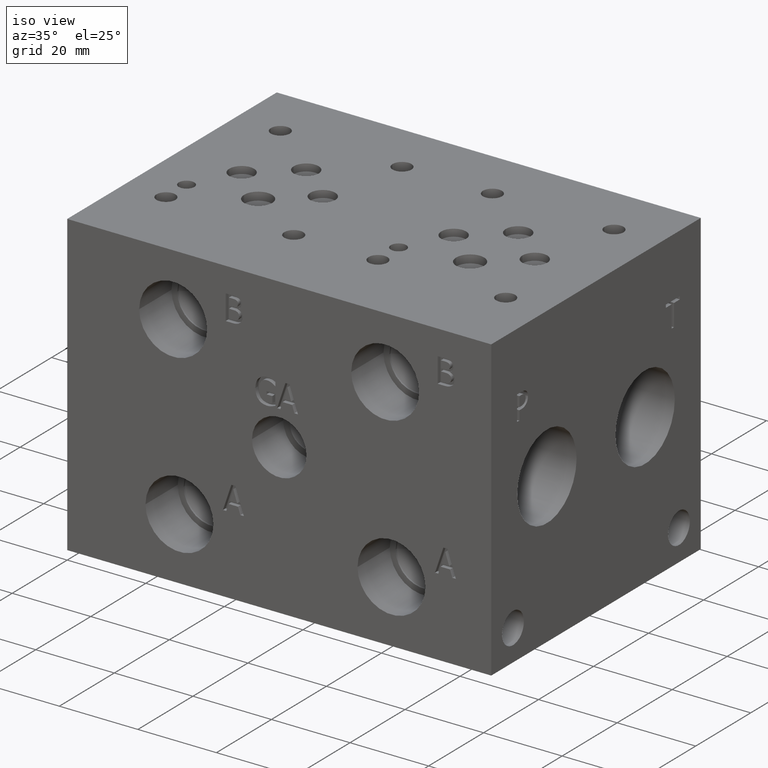
[diagram: clean part render]
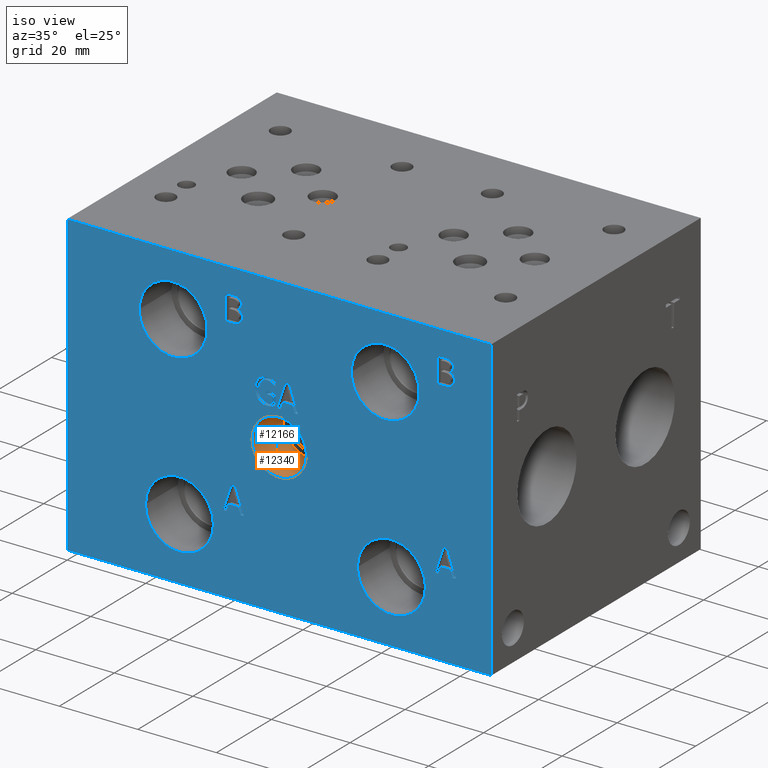
[diagram: same view with the hole feature highlighted: cylindrical wall and planar end face, labeled with their STEP entity ids]
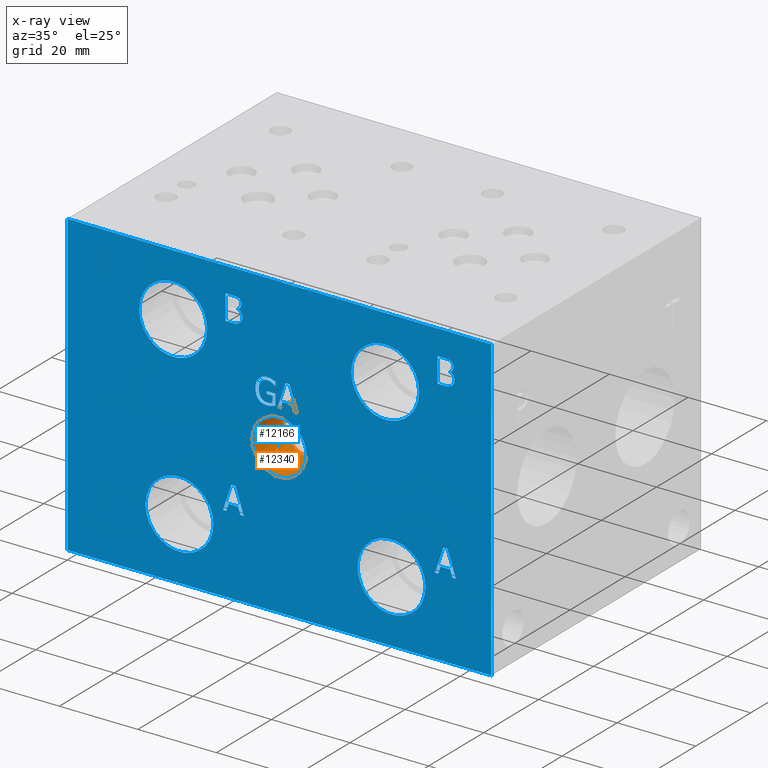
[diagram: x-ray of the same camera — body ghosted, the hole faces saturated]
A machine part, iso view. The highlighted faces form one hole feature of diameter 13.8684 mm: the cylindrical wall (entity #12340, orange) and its adjacent planar end face (entity #12166, blue) — they share a circular edge in the B-rep.
The next image is the same camera in x-ray (body ghosted, the hole faces saturated) — the bore reads through the body.
Wall:
#93=CYLINDRICAL_SURFACE('',#12984,6.9342);
#140=CIRCLE('',#12690,6.9342);
#141=CIRCLE('',#12691,6.9342);
#286=CIRCLE('',#12981,6.9342);
#287=CIRCLE('',#12982,6.9342);
#1382=FACE_OUTER_BOUND('',#2091,.T.);
#2091=EDGE_LOOP('',(#10833,#10834,#10835,#10836,#10837,#10838));
#3261=LINE('',#21233,#4389);
#4389=VECTOR('',#15347,6.9342);
#5588=VERTEX_POINT('',#19947);
#5589=VERTEX_POINT('',#19948);
#5897=VERTEX_POINT('',#21226);
#5898=VERTEX_POINT('',#21227);
#7151=EDGE_CURVE('',#5588,#5589,#140,.T.);
#7152=EDGE_CURVE('',#5589,#5588,#141,.T.);
#7584=EDGE_CURVE('',#5897,#5898,#286,.T.);
#7585=EDGE_CURVE('',#5898,#5897,#287,.T.);
#7587=EDGE_CURVE('',#5589,#5898,#3261,.T.);
#10833=ORIENTED_EDGE('',*,*,#7151,.F.);
#10834=ORIENTED_EDGE('',*,*,#7152,.F.);
#10835=ORIENTED_EDGE('',*,*,#7587,.T.);
#10836=ORIENTED_EDGE('',*,*,#7584,.F.);
#10837=ORIENTED_EDGE('',*,*,#7585,.F.);
#10838=ORIENTED_EDGE('',*,*,#7587,.F.);
#12340=ADVANCED_FACE('',(#1382),#93,.F.);
#12690=AXIS2_PLACEMENT_3D('',#19949,#14526,#14527);
#12691=AXIS2_PLACEMENT_3D('',#19950,#14528,#14529);
#12981=AXIS2_PLACEMENT_3D('',#21228,#15339,#15340);
#12982=AXIS2_PLACEMENT_3D('',#21229,#15341,#15342);
#12984=AXIS2_PLACEMENT_3D('',#21232,#15345,#15346);
#14526=DIRECTION('center_axis',(0.,1.,0.));
#14527=DIRECTION('ref_axis',(1.,0.,0.));
#14528=DIRECTION('center_axis',(0.,1.,0.));
#14529=DIRECTION('ref_axis',(1.,0.,0.));
#15339=DIRECTION('center_axis',(0.,-1.,0.));
#15340=DIRECTION('ref_axis',(1.,0.,0.));
#15341=DIRECTION('center_axis',(0.,-1.,0.));
#15342=DIRECTION('ref_axis',(1.,0.,0.));
#15345=DIRECTION('center_axis',(0.,-1.,0.));
#15346=DIRECTION('ref_axis',(1.,0.,0.));
#15347=DIRECTION('',(0.,1.,0.));
#19947=CARTESIAN_POINT('',(60.9092,0.,38.1));
#19948=CARTESIAN_POINT('',(47.0408,0.,38.1));
#19949=CARTESIAN_POINT('Origin',(53.975,0.,38.1));
#19950=CARTESIAN_POINT('Origin',(53.975,0.,38.1));
#21226=CARTESIAN_POINT('',(60.9092,11.4046,38.1));
#21227=CARTESIAN_POINT('',(47.0408,11.4046,38.1));
#21228=CARTESIAN_POINT('Origin',(53.975,11.4046,38.1));
#21229=CARTESIAN_POINT('Origin',(53.975,11.4046,38.1));
#21232=CARTESIAN_POINT('Origin',(53.975,5.7023,38.1));
#21233=CARTESIAN_POINT('',(47.0408,5.7023,38.1));
End face:
#132=CIRCLE('',#12682,8.6487);
#133=CIRCLE('',#12683,8.6487);
#134=CIRCLE('',#12684,8.6487);
#135=CIRCLE('',#12685,8.6487);
#136=CIRCLE('',#12686,8.6487);
#137=CIRCLE('',#12687,8.6487);
#138=CIRCLE('',#12688,8.6487);
#139=CIRCLE('',#12689,8.6487);
#140=CIRCLE('',#12690,6.9342);
#141=CIRCLE('',#12691,6.9342);
#380=FACE_BOUND('',#1886,.T.);
#381=FACE_BOUND('',#1887,.T.);
#382=FACE_BOUND('',#1888,.T.);
#383=FACE_BOUND('',#1889,.T.);
#384=FACE_BOUND('',#1890,.T.);
#385=FACE_BOUND('',#1891,.T.);
#386=FACE_BOUND('',#1892,.T.);
#387=FACE_BOUND('',#1893,.T.);
#388=FACE_BOUND('',#1894,.T.);
#389=FACE_BOUND('',#1895,.T.);
#390=FACE_BOUND('',#1896,.T.);
#702=PLANE('',#12681);
#1208=FACE_OUTER_BOUND('',#1885,.T.);
#1885=EDGE_LOOP('',(#9935,#9936,#9937,#9938));
#1886=EDGE_LOOP('',(#9939,#9940,#9941,#9942,#9943,#9944,#9945,#9946));
#1887=EDGE_LOOP('',(#9947,#9948));
#1888=EDGE_LOOP('',(#9949,#9950));
#1889=EDGE_LOOP('',(#9951,#9952));
#1890=EDGE_LOOP('',(#9953,#9954));
#1891=EDGE_LOOP('',(#9955,#9956));
#1892=EDGE_LOOP('',(#9957,#9958,#9959,#9960,#9961,#9962,#9963,#9964,#9965,
#9966));
#1893=EDGE_LOOP('',(#9967,#9968,#9969,#9970,#9971,#9972,#9973,#9974,#9975,
#9976));
#1894=EDGE_LOOP('',(#9977,#9978,#9979,#9980,#9981,#9982,#9983,#9984));
#1895=EDGE_LOOP('',(#9985,#9986,#9987,#9988,#9989,#9990,#9991,#9992,#9993,
#9994,#9995,#9996,#9997,#9998,#9999,#10000,#10001,#10002,#10003,#10004,
#10005));
#1896=EDGE_LOOP('',(#10006,#10007,#10008,#10009,#10010,#10011,#10012,#10013));
#2199=LINE('',#15774,#3327);
#2257=LINE('',#16046,#3385);
#2961=LINE('',#19557,#4089);
#2965=LINE('',#19565,#4093);
#2968=LINE('',#19571,#4096);
#2971=LINE('',#19577,#4099);
#2974=LINE('',#19583,#4102);
#2977=LINE('',#19589,#4105);
#2980=LINE('',#19595,#4108);
#2983=LINE('',#19600,#4111);
#2988=LINE('',#19646,#4116);
#2991=LINE('',#19652,#4119);
#2994=LINE('',#19658,#4122);
#2997=LINE('',#19664,#4125);
#3000=LINE('',#19670,#4128);
#3009=LINE('',#19790,#4137);
#3012=LINE('',#19796,#4140);
#3020=LINE('',#19913,#4148);
#3021=LINE('',#19914,#4149);
#3022=LINE('',#19917,#4150);
#3023=LINE('',#19919,#4151);
#3024=LINE('',#19921,#4152);
#3025=LINE('',#19923,#4153);
#3026=LINE('',#19925,#4154);
#3027=LINE('',#19927,#4155);
#3028=LINE('',#19929,#4156);
#3029=LINE('',#19930,#4157);
#3030=LINE('',#19968,#4158);
#3031=LINE('',#19970,#4159);
#3032=LINE('',#19972,#4160);
#3033=LINE('',#19988,#4161);
#3034=LINE('',#20006,#4162);
#3035=LINE('',#20008,#4163);
#3036=LINE('',#20010,#4164);
#3037=LINE('',#20026,#4165);
#3038=LINE('',#20029,#4166);
#3039=LINE('',#20031,#4167);
#3040=LINE('',#20033,#4168);
#3041=LINE('',#20035,#4169);
#3042=LINE('',#20037,#4170);
#3043=LINE('',#20039,#4171);
#3044=LINE('',#20041,#4172);
#3045=LINE('',#20042,#4173);
#3327=VECTOR('',#13135,10.);
#3385=VECTOR('',#13247,10.);
#4089=VECTOR('',#14407,10.);
#4093=VECTOR('',#14413,10.);
#4096=VECTOR('',#14418,10.);
#4099=VECTOR('',#14423,10.);
#4102=VECTOR('',#14428,10.);
#4105=VECTOR('',#14433,10.);
#4108=VECTOR('',#14438,10.);
#4111=VECTOR('',#14443,10.);
#4116=VECTOR('',#14452,10.);
#4119=VECTOR('',#14457,10.);
#4122=VECTOR('',#14462,10.);
#4125=VECTOR('',#14467,10.);
#4128=VECTOR('',#14472,10.);
#4137=VECTOR('',#14483,10.);
#4140=VECTOR('',#14488,10.);
#4148=VECTOR('',#14500,10.);
#4149=VECTOR('',#14501,10.);
#4150=VECTOR('',#14502,10.);
#4151=VECTOR('',#14503,10.);
#4152=VECTOR('',#14504,10.);
#4153=VECTOR('',#14505,10.);
#4154=VECTOR('',#14506,10.);
#4155=VECTOR('',#14507,10.);
#4156=VECTOR('',#14508,10.);
#4157=VECTOR('',#14509,10.);
#4158=VECTOR('',#14530,10.);
#4159=VECTOR('',#14531,10.);
#4160=VECTOR('',#14532,10.);
#4161=VECTOR('',#14533,10.);
#4162=VECTOR('',#14534,10.);
#4163=VECTOR('',#14535,10.);
#4164=VECTOR('',#14536,10.);
#4165=VECTOR('',#14537,10.);
#4166=VECTOR('',#14538,10.);
#4167=VECTOR('',#14539,10.);
#4168=VECTOR('',#14540,10.);
#4169=VECTOR('',#14541,10.);
#4170=VECTOR('',#14542,10.);
#4171=VECTOR('',#14543,10.);
#4172=VECTOR('',#14544,10.);
#4173=VECTOR('',#14545,10.);
#4694=B_SPLINE_CURVE_WITH_KNOTS('',2,(#19613,#19614,#19615,#19616),
 .UNSPECIFIED.,.F.,.F.,(3,1,3),(0.,1.,2.),.UNSPECIFIED.);
#4696=B_SPLINE_CURVE_WITH_KNOTS('',2,(#19634,#19635,#19636,#19637),
 .UNSPECIFIED.,.F.,.F.,(3,1,3),(0.,1.,2.),.UNSPECIFIED.);
#4698=B_SPLINE_CURVE_WITH_KNOTS('',2,(#19683,#19684,#19685,#19686),
 .UNSPECIFIED.,.F.,.F.,(3,1,3),(0.,1.,2.),.UNSPECIFIED.);
#4700=B_SPLINE_CURVE_WITH_KNOTS('',2,(#19702,#19703,#19704,#19705),
 .UNSPECIFIED.,.F.,.F.,(3,1,3),(0.,1.,2.),.UNSPECIFIED.);
#4702=B_SPLINE_CURVE_WITH_KNOTS('',2,(#19721,#19722,#19723,#19724),
 .UNSPECIFIED.,.F.,.F.,(3,1,3),(0.,1.,2.),.UNSPECIFIED.);
#4704=B_SPLINE_CURVE_WITH_KNOTS('',2,(#19740,#19741,#19742,#19743),
 .UNSPECIFIED.,.F.,.F.,(3,1,3),(0.,1.,2.),.UNSPECIFIED.);
#4706=B_SPLINE_CURVE_WITH_KNOTS('',2,(#19759,#19760,#19761,#19762),
 .UNSPECIFIED.,.F.,.F.,(3,1,3),(0.,1.,2.),.UNSPECIFIED.);
#4708=B_SPLINE_CURVE_WITH_KNOTS('',2,(#19778,#19779,#19780,#19781),
 .UNSPECIFIED.,.F.,.F.,(3,1,3),(0.,1.,2.),.UNSPECIFIED.);
#4710=B_SPLINE_CURVE_WITH_KNOTS('',2,(#19809,#19810,#19811,#19812),
 .UNSPECIFIED.,.F.,.F.,(3,1,3),(0.,1.,2.),.UNSPECIFIED.);
#4712=B_SPLINE_CURVE_WITH_KNOTS('',2,(#19828,#19829,#19830,#19831),
 .UNSPECIFIED.,.F.,.F.,(3,1,3),(0.,1.,2.),.UNSPECIFIED.);
#4714=B_SPLINE_CURVE_WITH_KNOTS('',2,(#19847,#19848,#19849,#19850),
 .UNSPECIFIED.,.F.,.F.,(3,1,3),(0.,1.,2.),.UNSPECIFIED.);
#4716=B_SPLINE_CURVE_WITH_KNOTS('',2,(#19866,#19867,#19868,#19869),
 .UNSPECIFIED.,.F.,.F.,(3,1,3),(0.,1.,2.),.UNSPECIFIED.);
#4718=B_SPLINE_CURVE_WITH_KNOTS('',2,(#19885,#19886,#19887,#19888),
 .UNSPECIFIED.,.F.,.F.,(3,1,3),(0.,1.,2.),.UNSPECIFIED.);
#4720=B_SPLINE_CURVE_WITH_KNOTS('',2,(#19903,#19904,#19905,#19906),
 .UNSPECIFIED.,.F.,.F.,(3,1,3),(0.,1.,2.),.UNSPECIFIED.);
#4722=B_SPLINE_CURVE_WITH_KNOTS('',2,(#19953,#19954,#19955,#19956),
 .UNSPECIFIED.,.F.,.F.,(3,1,3),(0.,1.,2.),.UNSPECIFIED.);
#4723=B_SPLINE_CURVE_WITH_KNOTS('',2,(#19958,#19959,#19960,#19961),
 .UNSPECIFIED.,.F.,.F.,(3,1,3),(0.,1.,2.),.UNSPECIFIED.);
#4724=B_SPLINE_CURVE_WITH_KNOTS('',2,(#19963,#19964,#19965,#19966),
 .UNSPECIFIED.,.F.,.F.,(3,1,3),(0.,1.,2.),.UNSPECIFIED.);
#4725=B_SPLINE_CURVE_WITH_KNOTS('',2,(#19974,#19975,#19976,#19977),
 .UNSPECIFIED.,.F.,.F.,(3,1,3),(0.,1.,2.),.UNSPECIFIED.);
#4726=B_SPLINE_CURVE_WITH_KNOTS('',2,(#19979,#19980,#19981,#19982),
 .UNSPECIFIED.,.F.,.F.,(3,1,3),(0.,1.,2.),.UNSPECIFIED.);
#4727=B_SPLINE_CURVE_WITH_KNOTS('',2,(#19984,#19985,#19986,#19987),
 .UNSPECIFIED.,.F.,.F.,(3,1,3),(0.,1.,2.),.UNSPECIFIED.);
#4728=B_SPLINE_CURVE_WITH_KNOTS('',2,(#19991,#19992,#19993,#19994),
 .UNSPECIFIED.,.F.,.F.,(3,1,3),(0.,1.,2.),.UNSPECIFIED.);
#4729=B_SPLINE_CURVE_WITH_KNOTS('',2,(#19996,#19997,#19998,#19999),
 .UNSPECIFIED.,.F.,.F.,(3,1,3),(0.,1.,2.),.UNSPECIFIED.);
#4730=B_SPLINE_CURVE_WITH_KNOTS('',2,(#20001,#20002,#20003,#20004),
 .UNSPECIFIED.,.F.,.F.,(3,1,3),(0.,1.,2.),.UNSPECIFIED.);
#4731=B_SPLINE_CURVE_WITH_KNOTS('',2,(#20012,#20013,#20014,#20015),
 .UNSPECIFIED.,.F.,.F.,(3,1,3),(0.,1.,2.),.UNSPECIFIED.);
#4732=B_SPLINE_CURVE_WITH_KNOTS('',2,(#20017,#20018,#20019,#20020),
 .UNSPECIFIED.,.F.,.F.,(3,1,3),(0.,1.,2.),.UNSPECIFIED.);
#4733=B_SPLINE_CURVE_WITH_KNOTS('',2,(#20022,#20023,#20024,#20025),
 .UNSPECIFIED.,.F.,.F.,(3,1,3),(0.,1.,2.),.UNSPECIFIED.);
#4810=VERTEX_POINT('',#15767);
#4813=VERTEX_POINT('',#15772);
#4871=VERTEX_POINT('',#16043);
#4872=VERTEX_POINT('',#16045);
#5514=VERTEX_POINT('',#19555);
#5515=VERTEX_POINT('',#19556);
#5518=VERTEX_POINT('',#19564);
#5520=VERTEX_POINT('',#19570);
#5522=VERTEX_POINT('',#19576);
#5524=VERTEX_POINT('',#19582);
#5526=VERTEX_POINT('',#19588);
#5528=VERTEX_POINT('',#19594);
#5530=VERTEX_POINT('',#19611);
#5531=VERTEX_POINT('',#19612);
#5534=VERTEX_POINT('',#19633);
#5536=VERTEX_POINT('',#19645);
#5538=VERTEX_POINT('',#19651);
#5540=VERTEX_POINT('',#19657);
#5542=VERTEX_POINT('',#19663);
#5544=VERTEX_POINT('',#19669);
#5546=VERTEX_POINT('',#19682);
#5548=VERTEX_POINT('',#19701);
#5550=VERTEX_POINT('',#19720);
#5552=VERTEX_POINT('',#19739);
#5554=VERTEX_POINT('',#19758);
#5556=VERTEX_POINT('',#19777);
#5558=VERTEX_POINT('',#19789);
#5560=VERTEX_POINT('',#19795);
#5562=VERTEX_POINT('',#19808);
#5564=VERTEX_POINT('',#19827);
#5566=VERTEX_POINT('',#19846);
#5568=VERTEX_POINT('',#19865);
#5570=VERTEX_POINT('',#19884);
#5572=VERTEX_POINT('',#19915);
#5573=VERTEX_POINT('',#19916);
#5574=VERTEX_POINT('',#19918);
#5575=VERTEX_POINT('',#19920);
#5576=VERTEX_POINT('',#19922);
#5577=VERTEX_POINT('',#19924);
#5578=VERTEX_POINT('',#19926);
#5579=VERTEX_POINT('',#19928);
#5580=VERTEX_POINT('',#19931);
#5581=VERTEX_POINT('',#19932);
#5582=VERTEX_POINT('',#19935);
#5583=VERTEX_POINT('',#19936);
#5584=VERTEX_POINT('',#19939);
#5585=VERTEX_POINT('',#19940);
#5586=VERTEX_POINT('',#19943);
#5587=VERTEX_POINT('',#19944);
#5588=VERTEX_POINT('',#19947);
#5589=VERTEX_POINT('',#19948);
#5590=VERTEX_POINT('',#19951);
#5591=VERTEX_POINT('',#19952);
#5592=VERTEX_POINT('',#19957);
#5593=VERTEX_POINT('',#19962);
#5594=VERTEX_POINT('',#19967);
#5595=VERTEX_POINT('',#19969);
#5596=VERTEX_POINT('',#19971);
#5597=VERTEX_POINT('',#19973);
#5598=VERTEX_POINT('',#19978);
#5599=VERTEX_POINT('',#19983);
#5600=VERTEX_POINT('',#19989);
#5601=VERTEX_POINT('',#19990);
#5602=VERTEX_POINT('',#19995);
#5603=VERTEX_POINT('',#20000);
#5604=VERTEX_POINT('',#20005);
#5605=VERTEX_POINT('',#20007);
#5606=VERTEX_POINT('',#20009);
#5607=VERTEX_POINT('',#20011);
#5608=VERTEX_POINT('',#20016);
#5609=VERTEX_POINT('',#20021);
#5610=VERTEX_POINT('',#20027);
#5611=VERTEX_POINT('',#20028);
#5612=VERTEX_POINT('',#20030);
#5613=VERTEX_POINT('',#20032);
#5614=VERTEX_POINT('',#20034);
#5615=VERTEX_POINT('',#20036);
#5616=VERTEX_POINT('',#20038);
#5617=VERTEX_POINT('',#20040);
#6008=EDGE_CURVE('',#4810,#4813,#2199,.T.);
#6090=EDGE_CURVE('',#4871,#4872,#2257,.T.);
#7046=EDGE_CURVE('',#5514,#5515,#2961,.T.);
#7050=EDGE_CURVE('',#5518,#5514,#2965,.T.);
#7053=EDGE_CURVE('',#5520,#5518,#2968,.T.);
#7056=EDGE_CURVE('',#5522,#5520,#2971,.T.);
#7059=EDGE_CURVE('',#5524,#5522,#2974,.T.);
#7062=EDGE_CURVE('',#5526,#5524,#2977,.T.);
#7065=EDGE_CURVE('',#5528,#5526,#2980,.T.);
#7068=EDGE_CURVE('',#5515,#5528,#2983,.T.);
#7070=EDGE_CURVE('',#5530,#5531,#4694,.T.);
#7074=EDGE_CURVE('',#5534,#5530,#4696,.T.);
#7077=EDGE_CURVE('',#5536,#5534,#2988,.T.);
#7080=EDGE_CURVE('',#5538,#5536,#2991,.T.);
#7083=EDGE_CURVE('',#5540,#5538,#2994,.T.);
#7086=EDGE_CURVE('',#5542,#5540,#2997,.T.);
#7089=EDGE_CURVE('',#5544,#5542,#3000,.T.);
#7092=EDGE_CURVE('',#5546,#5544,#4698,.T.);
#7095=EDGE_CURVE('',#5548,#5546,#4700,.T.);
#7098=EDGE_CURVE('',#5550,#5548,#4702,.T.);
#7101=EDGE_CURVE('',#5552,#5550,#4704,.T.);
#7104=EDGE_CURVE('',#5554,#5552,#4706,.T.);
#7107=EDGE_CURVE('',#5556,#5554,#4708,.T.);
#7110=EDGE_CURVE('',#5558,#5556,#3009,.T.);
#7113=EDGE_CURVE('',#5560,#5558,#3012,.T.);
#7116=EDGE_CURVE('',#5562,#5560,#4710,.T.);
#7119=EDGE_CURVE('',#5564,#5562,#4712,.T.);
#7122=EDGE_CURVE('',#5566,#5564,#4714,.T.);
#7125=EDGE_CURVE('',#5568,#5566,#4716,.T.);
#7128=EDGE_CURVE('',#5570,#5568,#4718,.T.);
#7131=EDGE_CURVE('',#5531,#5570,#4720,.T.);
#7133=EDGE_CURVE('',#4871,#4810,#3020,.T.);
#7134=EDGE_CURVE('',#4872,#4813,#3021,.T.);
#7135=EDGE_CURVE('',#5572,#5573,#3022,.T.);
#7136=EDGE_CURVE('',#5573,#5574,#3023,.T.);
#7137=EDGE_CURVE('',#5574,#5575,#3024,.T.);
#7138=EDGE_CURVE('',#5575,#5576,#3025,.T.);
#7139=EDGE_CURVE('',#5576,#5577,#3026,.T.);
#7140=EDGE_CURVE('',#5577,#5578,#3027,.T.);
#7141=EDGE_CURVE('',#5578,#5579,#3028,.T.);
#7142=EDGE_CURVE('',#5579,#5572,#3029,.T.);
#7143=EDGE_CURVE('',#5580,#5581,#132,.T.);
#7144=EDGE_CURVE('',#5581,#5580,#133,.T.);
#7145=EDGE_CURVE('',#5582,#5583,#134,.T.);
#7146=EDGE_CURVE('',#5583,#5582,#135,.T.);
#7147=EDGE_CURVE('',#5584,#5585,#136,.T.);
#7148=EDGE_CURVE('',#5585,#5584,#137,.T.);
#7149=EDGE_CURVE('',#5586,#5587,#138,.T.);
#7150=EDGE_CURVE('',#5587,#5586,#139,.T.);
#7151=EDGE_CURVE('',#5588,#5589,#140,.T.);
#7152=EDGE_CURVE('',#5589,#5588,#141,.T.);
#7153=EDGE_CURVE('',#5590,#5591,#4722,.T.);
#7154=EDGE_CURVE('',#5591,#5592,#4723,.T.);
#7155=EDGE_CURVE('',#5592,#5593,#4724,.T.);
#7156=EDGE_CURVE('',#5593,#5594,#3030,.T.);
#7157=EDGE_CURVE('',#5594,#5595,#3031,.T.);
#7158=EDGE_CURVE('',#5595,#5596,#3032,.T.);
#7159=EDGE_CURVE('',#5596,#5597,#4725,.T.);
#7160=EDGE_CURVE('',#5597,#5598,#4726,.T.);
#7161=EDGE_CURVE('',#5598,#5599,#4727,.T.);
#7162=EDGE_CURVE('',#5599,#5590,#3033,.T.);
#7163=EDGE_CURVE('',#5600,#5601,#4728,.T.);
#7164=EDGE_CURVE('',#5601,#5602,#4729,.T.);
#7165=EDGE_CURVE('',#5602,#5603,#4730,.T.);
#7166=EDGE_CURVE('',#5603,#5604,#3034,.T.);
#7167=EDGE_CURVE('',#5604,#5605,#3035,.T.);
#7168=EDGE_CURVE('',#5605,#5606,#3036,.T.);
#7169=EDGE_CURVE('',#5606,#5607,#4731,.T.);
#7170=EDGE_CURVE('',#5607,#5608,#4732,.T.);
#7171=EDGE_CURVE('',#5608,#5609,#4733,.T.);
#7172=EDGE_CURVE('',#5609,#5600,#3037,.T.);
#7173=EDGE_CURVE('',#5610,#5611,#3038,.T.);
#7174=EDGE_CURVE('',#5611,#5612,#3039,.T.);
#7175=EDGE_CURVE('',#5612,#5613,#3040,.T.);
#7176=EDGE_CURVE('',#5613,#5614,#3041,.T.);
#7177=EDGE_CURVE('',#5614,#5615,#3042,.T.);
#7178=EDGE_CURVE('',#5615,#5616,#3043,.T.);
#7179=EDGE_CURVE('',#5616,#5617,#3044,.T.);
#7180=EDGE_CURVE('',#5617,#5610,#3045,.T.);
#9935=ORIENTED_EDGE('',*,*,#7133,.T.);
#9936=ORIENTED_EDGE('',*,*,#6008,.T.);
#9937=ORIENTED_EDGE('',*,*,#7134,.F.);
#9938=ORIENTED_EDGE('',*,*,#6090,.F.);
#9939=ORIENTED_EDGE('',*,*,#7135,.T.);
#9940=ORIENTED_EDGE('',*,*,#7136,.T.);
#9941=ORIENTED_EDGE('',*,*,#7137,.T.);
#9942=ORIENTED_EDGE('',*,*,#7138,.T.);
#9943=ORIENTED_EDGE('',*,*,#7139,.T.);
#9944=ORIENTED_EDGE('',*,*,#7140,.T.);
#9945=ORIENTED_EDGE('',*,*,#7141,.T.);
#9946=ORIENTED_EDGE('',*,*,#7142,.T.);
#9947=ORIENTED_EDGE('',*,*,#7143,.T.);
#9948=ORIENTED_EDGE('',*,*,#7144,.T.);
#9949=ORIENTED_EDGE('',*,*,#7145,.T.);
#9950=ORIENTED_EDGE('',*,*,#7146,.T.);
#9951=ORIENTED_EDGE('',*,*,#7147,.T.);
#9952=ORIENTED_EDGE('',*,*,#7148,.T.);
#9953=ORIENTED_EDGE('',*,*,#7149,.T.);
#9954=ORIENTED_EDGE('',*,*,#7150,.T.);
#9955=ORIENTED_EDGE('',*,*,#7151,.T.);
#9956=ORIENTED_EDGE('',*,*,#7152,.T.);
#9957=ORIENTED_EDGE('',*,*,#7153,.T.);
#9958=ORIENTED_EDGE('',*,*,#7154,.T.);
#9959=ORIENTED_EDGE('',*,*,#7155,.T.);
#9960=ORIENTED_EDGE('',*,*,#7156,.T.);
#9961=ORIENTED_EDGE('',*,*,#7157,.T.);
#9962=ORIENTED_EDGE('',*,*,#7158,.T.);
#9963=ORIENTED_EDGE('',*,*,#7159,.T.);
#9964=ORIENTED_EDGE('',*,*,#7160,.T.);
#9965=ORIENTED_EDGE('',*,*,#7161,.T.);
#9966=ORIENTED_EDGE('',*,*,#7162,.T.);
#9967=ORIENTED_EDGE('',*,*,#7163,.T.);
#9968=ORIENTED_EDGE('',*,*,#7164,.T.);
#9969=ORIENTED_EDGE('',*,*,#7165,.T.);
#9970=ORIENTED_EDGE('',*,*,#7166,.T.);
#9971=ORIENTED_EDGE('',*,*,#7167,.T.);
#9972=ORIENTED_EDGE('',*,*,#7168,.T.);
#9973=ORIENTED_EDGE('',*,*,#7169,.T.);
#9974=ORIENTED_EDGE('',*,*,#7170,.T.);
#9975=ORIENTED_EDGE('',*,*,#7171,.T.);
#9976=ORIENTED_EDGE('',*,*,#7172,.T.);
#9977=ORIENTED_EDGE('',*,*,#7173,.T.);
#9978=ORIENTED_EDGE('',*,*,#7174,.T.);
#9979=ORIENTED_EDGE('',*,*,#7175,.T.);
#9980=ORIENTED_EDGE('',*,*,#7176,.T.);
#9981=ORIENTED_EDGE('',*,*,#7177,.T.);
#9982=ORIENTED_EDGE('',*,*,#7178,.T.);
#9983=ORIENTED_EDGE('',*,*,#7179,.T.);
#9984=ORIENTED_EDGE('',*,*,#7180,.T.);
#9985=ORIENTED_EDGE('',*,*,#7070,.T.);
#9986=ORIENTED_EDGE('',*,*,#7131,.T.);
#9987=ORIENTED_EDGE('',*,*,#7128,.T.);
#9988=ORIENTED_EDGE('',*,*,#7125,.T.);
#9989=ORIENTED_EDGE('',*,*,#7122,.T.);
#9990=ORIENTED_EDGE('',*,*,#7119,.T.);
#9991=ORIENTED_EDGE('',*,*,#7116,.T.);
#9992=ORIENTED_EDGE('',*,*,#7113,.T.);
#9993=ORIENTED_EDGE('',*,*,#7110,.T.);
#9994=ORIENTED_EDGE('',*,*,#7107,.T.);
#9995=ORIENTED_EDGE('',*,*,#7104,.T.);
#9996=ORIENTED_EDGE('',*,*,#7101,.T.);
#9997=ORIENTED_EDGE('',*,*,#7098,.T.);
#9998=ORIENTED_EDGE('',*,*,#7095,.T.);
#9999=ORIENTED_EDGE('',*,*,#7092,.T.);
#10000=ORIENTED_EDGE('',*,*,#7089,.T.);
#10001=ORIENTED_EDGE('',*,*,#7086,.T.);
#10002=ORIENTED_EDGE('',*,*,#7083,.T.);
#10003=ORIENTED_EDGE('',*,*,#7080,.T.);
#10004=ORIENTED_EDGE('',*,*,#7077,.T.);
#10005=ORIENTED_EDGE('',*,*,#7074,.T.);
#10006=ORIENTED_EDGE('',*,*,#7046,.T.);
#10007=ORIENTED_EDGE('',*,*,#7068,.T.);
#10008=ORIENTED_EDGE('',*,*,#7065,.T.);
#10009=ORIENTED_EDGE('',*,*,#7062,.T.);
#10010=ORIENTED_EDGE('',*,*,#7059,.T.);
#10011=ORIENTED_EDGE('',*,*,#7056,.T.);
#10012=ORIENTED_EDGE('',*,*,#7053,.T.);
#10013=ORIENTED_EDGE('',*,*,#7050,.T.);
#12166=ADVANCED_FACE('',(#1208,#380,#381,#382,#383,#384,#385,#386,#387,
#388,#389,#390),#702,.T.);
#12681=AXIS2_PLACEMENT_3D('',#19912,#14498,#14499);
#12682=AXIS2_PLACEMENT_3D('',#19933,#14510,#14511);
#12683=AXIS2_PLACEMENT_3D('',#19934,#14512,#14513);
#12684=AXIS2_PLACEMENT_3D('',#19937,#14514,#14515);
#12685=AXIS2_PLACEMENT_3D('',#19938,#14516,#14517);
#12686=AXIS2_PLACEMENT_3D('',#19941,#14518,#14519);
#12687=AXIS2_PLACEMENT_3D('',#19942,#14520,#14521);
#12688=AXIS2_PLACEMENT_3D('',#19945,#14522,#14523);
#12689=AXIS2_PLACEMENT_3D('',#19946,#14524,#14525);
#12690=AXIS2_PLACEMENT_3D('',#19949,#14526,#14527);
#12691=AXIS2_PLACEMENT_3D('',#19950,#14528,#14529);
#13135=DIRECTION('',(0.,0.,1.));
#13247=DIRECTION('',(0.,0.,1.));
#14407=DIRECTION('',(-1.,0.,0.));
#14413=DIRECTION('',(-0.308774363938379,0.,-0.951135317488763));
#14418=DIRECTION('',(-1.,0.,0.));
#14423=DIRECTION('',(-0.308774363938383,0.,0.951135317488761));
#14428=DIRECTION('',(-1.,0.,0.));
#14433=DIRECTION('',(0.319451166674568,0.,-0.947602739606771));
#14438=DIRECTION('',(1.,0.,0.));
#14443=DIRECTION('',(0.319451166674567,0.,0.947602739606771));
#14452=DIRECTION('',(0.,0.,-1.));
#14457=DIRECTION('',(1.,0.,0.));
#14462=DIRECTION('',(0.,0.,1.));
#14467=DIRECTION('',(-1.,0.,0.));
#14472=DIRECTION('',(0.,0.,1.));
#14483=DIRECTION('',(-1.,0.,0.));
#14488=DIRECTION('',(0.,0.,-1.));
#14498=DIRECTION('center_axis',(0.,-1.,0.));
#14499=DIRECTION('ref_axis',(1.,0.,0.));
#14500=DIRECTION('',(1.,0.,0.));
#14501=DIRECTION('',(1.,0.,0.));
#14502=DIRECTION('',(-1.,0.,0.));
#14503=DIRECTION('',(0.31945116667457,0.,0.94760273960677));
#14504=DIRECTION('',(1.,0.,0.));
#14505=DIRECTION('',(0.319451166674567,0.,-0.947602739606771));
#14506=DIRECTION('',(-1.,0.,0.));
#14507=DIRECTION('',(-0.308774363938383,0.,0.951135317488761));
#14508=DIRECTION('',(-1.,0.,0.));
#14509=DIRECTION('',(-0.308774363938383,0.,-0.951135317488761));
#14510=DIRECTION('center_axis',(0.,1.,0.));
#14511=DIRECTION('ref_axis',(1.,0.,0.));
#14512=DIRECTION('center_axis',(0.,1.,0.));
#14513=DIRECTION('ref_axis',(1.,0.,0.));
#14514=DIRECTION('center_axis',(0.,1.,0.));
#14515=DIRECTION('ref_axis',(1.,0.,0.));
#14516=DIRECTION('center_axis',(0.,1.,0.));
#14517=DIRECTION('ref_axis',(1.,0.,0.));
#14518=DIRECTION('center_axis',(0.,1.,0.));
#14519=DIRECTION('ref_axis',(1.,0.,0.));
#14520=DIRECTION('center_axis',(0.,1.,0.));
#14521=DIRECTION('ref_axis',(1.,0.,0.));
#14522=DIRECTION('center_axis',(0.,1.,0.));
#14523=DIRECTION('ref_axis',(1.,0.,0.));
#14524=DIRECTION('center_axis',(0.,1.,0.));
#14525=DIRECTION('ref_axis',(1.,0.,0.));
#14526=DIRECTION('center_axis',(0.,1.,0.));
#14527=DIRECTION('ref_axis',(1.,0.,0.));
#14528=DIRECTION('center_axis',(0.,1.,0.));
#14529=DIRECTION('ref_axis',(1.,0.,0.));
#14530=DIRECTION('',(-1.,0.,0.));
#14531=DIRECTION('',(0.,0.,1.));
#14532=DIRECTION('',(1.,0.,0.));
#14533=DIRECTION('',(0.,0.,-1.));
#14534=DIRECTION('',(-1.,0.,0.));
#14535=DIRECTION('',(0.,0.,1.));
#14536=DIRECTION('',(1.,0.,0.));
#14537=DIRECTION('',(0.,0.,-1.));
#14538=DIRECTION('',(-1.,0.,0.));
#14539=DIRECTION('',(0.319451166674567,0.,0.947602739606771));
#14540=DIRECTION('',(1.,0.,0.));
#14541=DIRECTION('',(0.319451166674568,0.,-0.947602739606771));
#14542=DIRECTION('',(-1.,0.,0.));
#14543=DIRECTION('',(-0.308774363938383,0.,0.951135317488761));
#14544=DIRECTION('',(-1.,0.,0.));
#14545=DIRECTION('',(-0.308774363938379,0.,-0.951135317488763));
#15767=CARTESIAN_POINT('',(107.95,0.,0.));
#15772=CARTESIAN_POINT('',(107.95,0.,76.2));
#15774=CARTESIAN_POINT('',(107.95,0.,0.));
#16043=CARTESIAN_POINT('',(0.,0.,0.));
#16045=CARTESIAN_POINT('',(0.,0.,76.2));
#16046=CARTESIAN_POINT('',(0.,0.,0.));
#19555=CARTESIAN_POINT('',(54.2683143248628,0.,46.9547508053482));
#19556=CARTESIAN_POINT('',(53.4141003992801,0.,46.9547508053482));
#19557=CARTESIAN_POINT('',(27.1341571624314,0.,46.9547508053482));
#19564=CARTESIAN_POINT('',(54.84465143128,0.,48.730074927794));
#19565=CARTESIAN_POINT('',(45.0744874763821,0.,18.6344806024388));
#19570=CARTESIAN_POINT('',(57.2683547984452,0.,48.730074927794));
#19571=CARTESIAN_POINT('',(28.6341773992226,0.,48.730074927794));
#19576=CARTESIAN_POINT('',(57.8446919048625,0.,46.9547508053482));
#19577=CARTESIAN_POINT('',(61.9821701705028,0.,34.209840076367));
#19582=CARTESIAN_POINT('',(58.7349268995962,0.,46.9547508053482));
#19583=CARTESIAN_POINT('',(29.3674634497981,0.,46.9547508053482));
#19588=CARTESIAN_POINT('',(56.594246218618,0.,53.3047507099807));
#19589=CARTESIAN_POINT('',(61.7745669366148,0.,37.9381262724614));
#19594=CARTESIAN_POINT('',(55.5547810802583,0.,53.3047507099807));
#19595=CARTESIAN_POINT('',(27.7773905401292,0.,53.3047507099807));
#19600=CARTESIAN_POINT('',(43.5817692929669,0.,17.788653244794));
#19611=CARTESIAN_POINT('',(52.1019043087766,0.,47.0165012096071));
#19612=CARTESIAN_POINT('',(50.9286466278558,0.,46.8312499968302));
#19613=CARTESIAN_POINT('Ctrl Pts',(52.1019043087766,0.,47.0165012096071));
#19614=CARTESIAN_POINT('Ctrl Pts',(51.7880064204601,0.,46.9238756032187));
#19615=CARTESIAN_POINT('Ctrl Pts',(51.283711452345,0.,46.8312499968302));
#19616=CARTESIAN_POINT('Ctrl Pts',(50.9286466278558,0.,46.8312499968302));
#19633=CARTESIAN_POINT('',(53.0384521067046,0.,47.3767119011179));
#19634=CARTESIAN_POINT('Ctrl Pts',(53.0384521067046,0.,47.3767119011179));
#19635=CARTESIAN_POINT('Ctrl Pts',(52.8789302290355,0.,47.3046697628158));
#19636=CARTESIAN_POINT('Ctrl Pts',(52.3334683247478,0.,47.0833974808877));
#19637=CARTESIAN_POINT('Ctrl Pts',(52.1019043087766,0.,47.0165012096071));
#19645=CARTESIAN_POINT('',(53.0384521067046,0.,50.1503342257508));
#19646=CARTESIAN_POINT('',(53.0384521067046,0.,25.0751671128754));
#19651=CARTESIAN_POINT('',(50.7331036810357,0.,50.1503342257508));
#19652=CARTESIAN_POINT('',(25.3665518405179,0.,50.1503342257508));
#19657=CARTESIAN_POINT('',(50.7331036810357,0.,49.4093293746429));
#19658=CARTESIAN_POINT('',(50.7331036810357,0.,24.7046646873215));
#19663=CARTESIAN_POINT('',(52.2048216492083,0.,49.4093293746429));
#19664=CARTESIAN_POINT('',(26.1024108246041,0.,49.4093293746429));
#19669=CARTESIAN_POINT('',(52.2048216492083,0.,47.7677977947582));
#19670=CARTESIAN_POINT('',(52.2048216492083,0.,23.8838988973791));
#19682=CARTESIAN_POINT('',(50.8977714257263,0.,47.5619631138949));
#19683=CARTESIAN_POINT('Ctrl Pts',(50.8977714257264,0.,47.5619631138949));
#19684=CARTESIAN_POINT('Ctrl Pts',(51.2528362502155,0.,47.5619631138949));
#19685=CARTESIAN_POINT('Ctrl Pts',(51.9629658991939,0.,47.6648804543265));
#19686=CARTESIAN_POINT('Ctrl Pts',(52.2048216492083,0.,47.7677977947582));
#19701=CARTESIAN_POINT('',(49.3694489203164,0.,48.2360716937222));
#19702=CARTESIAN_POINT('Ctrl Pts',(49.3694489203164,0.,48.2360716937222));
#19703=CARTESIAN_POINT('Ctrl Pts',(49.6421798724603,0.,47.9067362043409));
#19704=CARTESIAN_POINT('Ctrl Pts',(50.4140599256976,0.,47.5619631138949));
#19705=CARTESIAN_POINT('Ctrl Pts',(50.8977714257264,0.,47.5619631138949));
#19720=CARTESIAN_POINT('',(48.7879659468776,0.,50.1606259597939));
#19721=CARTESIAN_POINT('Ctrl Pts',(48.7879659468776,0.,50.1606259597939));
#19722=CARTESIAN_POINT('Ctrl Pts',(48.7879659468776,0.,49.5225384491177));
#19723=CARTESIAN_POINT('Ctrl Pts',(49.0864262341294,0.,48.5654071831034));
#19724=CARTESIAN_POINT('Ctrl Pts',(49.3694489203164,0.,48.2360716937222));
#19739=CARTESIAN_POINT('',(50.8360210214674,0.,52.6872466673908));
#19740=CARTESIAN_POINT('Ctrl Pts',(50.8360210214674,0.,52.6872466673908));
#19741=CARTESIAN_POINT('Ctrl Pts',(49.9200566916257,0.,52.6872466673908));
#19742=CARTESIAN_POINT('Ctrl Pts',(48.7879659468776,0.,51.3081543056068));
#19743=CARTESIAN_POINT('Ctrl Pts',(48.7879659468776,0.,50.1606259597939));
#19758=CARTESIAN_POINT('',(52.1379253779277,0.,52.3887863801391));
#19759=CARTESIAN_POINT('Ctrl Pts',(52.1379253779277,0.,52.3887863801391));
#19760=CARTESIAN_POINT('Ctrl Pts',(51.8806320268486,0.,52.5174330556786));
#19761=CARTESIAN_POINT('Ctrl Pts',(51.2168151810645,0.,52.6872466673908));
#19762=CARTESIAN_POINT('Ctrl Pts',(50.8360210214674,0.,52.6872466673908));
#19777=CARTESIAN_POINT('',(52.9406806332945,0.,51.8536162098945));
#19778=CARTESIAN_POINT('Ctrl Pts',(52.9406806332945,0.,51.8536162098945));
#19779=CARTESIAN_POINT('Ctrl Pts',(52.7811587556255,0.,51.9925546194772));
#19780=CARTESIAN_POINT('Ctrl Pts',(52.4466773992226,0.,52.2447021035348));
#19781=CARTESIAN_POINT('Ctrl Pts',(52.1379253779277,0.,52.3887863801391));
#19789=CARTESIAN_POINT('',(53.0127227715967,0.,51.8536162098945));
#19790=CARTESIAN_POINT('',(26.5063613857983,0.,51.8536162098945));
#19795=CARTESIAN_POINT('',(53.0127227715967,0.,52.8724978801678));
#19796=CARTESIAN_POINT('',(53.0127227715967,0.,26.4362489400839));
#19808=CARTESIAN_POINT('',(52.1121960428198,0.,53.2430003057217));
#19809=CARTESIAN_POINT('Ctrl Pts',(52.1121960428198,0.,53.2430003057217));
#19810=CARTESIAN_POINT('Ctrl Pts',(52.3283224577262,0.,53.1812499014627));
#19811=CARTESIAN_POINT('Ctrl Pts',(52.8532008939276,0.,52.9548317525131));
#19812=CARTESIAN_POINT('Ctrl Pts',(53.0127227715967,0.,52.8724978801678));
#19827=CARTESIAN_POINT('',(50.9337924948774,0.,53.4179597844555));
#19828=CARTESIAN_POINT('Ctrl Pts',(50.9337924948774,0.,53.4179597844555));
#19829=CARTESIAN_POINT('Ctrl Pts',(51.2579821172371,0.,53.4179597844555));
#19830=CARTESIAN_POINT('Ctrl Pts',(51.8446109576975,0.,53.3253341780671));
#19831=CARTESIAN_POINT('Ctrl Pts',(52.1121960428198,0.,53.2430003057217));
#19846=CARTESIAN_POINT('',(48.7416531436834,0.,52.5483082578081));
#19847=CARTESIAN_POINT('Ctrl Pts',(48.7416531436834,0.,52.5483082578081));
#19848=CARTESIAN_POINT('Ctrl Pts',(49.127593170302,0.,52.9651234865563));
#19849=CARTESIAN_POINT('Ctrl Pts',(50.2596839150501,0.,53.4179597844555));
#19850=CARTESIAN_POINT('Ctrl Pts',(50.9337924948774,0.,53.4179597844555));
#19865=CARTESIAN_POINT('',(47.908022686187,0.,50.134896624686));
#19866=CARTESIAN_POINT('Ctrl Pts',(47.908022686187,0.,50.134896624686));
#19867=CARTESIAN_POINT('Ctrl Pts',(47.908022686187,0.,50.9016308109018));
#19868=CARTESIAN_POINT('Ctrl Pts',(48.3402755159999,0.,52.1160554279952));
#19869=CARTESIAN_POINT('Ctrl Pts',(48.7416531436834,0.,52.5483082578081));
#19884=CARTESIAN_POINT('',(48.7365072766618,0.,47.6597345873049));
#19885=CARTESIAN_POINT('Ctrl Pts',(48.7365072766618,0.,47.6597345873049));
#19886=CARTESIAN_POINT('Ctrl Pts',(48.3351296489784,0.,48.0816956830747));
#19887=CARTESIAN_POINT('Ctrl Pts',(47.908022686187,0.,49.3269955022976));
#19888=CARTESIAN_POINT('Ctrl Pts',(47.908022686187,0.,50.134896624686));
#19903=CARTESIAN_POINT('Ctrl Pts',(50.9286466278558,0.,46.8312499968302));
#19904=CARTESIAN_POINT('Ctrl Pts',(50.2545380480286,0.,46.8312499968302));
#19905=CARTESIAN_POINT('Ctrl Pts',(49.1378849043452,0.,47.2429193585568));
#19906=CARTESIAN_POINT('Ctrl Pts',(48.7365072766618,0.,47.6597345873049));
#19912=CARTESIAN_POINT('Origin',(0.,0.,0.));
#19913=CARTESIAN_POINT('',(0.,0.,0.));
#19914=CARTESIAN_POINT('',(0.,0.,76.2));
#19915=CARTESIAN_POINT('',(94.47554698941,0.,19.84375));
#19916=CARTESIAN_POINT('',(93.6213330638273,0.,19.84375));
#19917=CARTESIAN_POINT('',(47.237773494705,0.,19.84375));
#19918=CARTESIAN_POINT('',(95.7620137448056,0.,26.1937499046326));
#19919=CARTESIAN_POINT('',(85.8408705436028,0.,-3.23579507201198));
#19920=CARTESIAN_POINT('',(96.8014788831652,0.,26.1937499046326));
#19921=CARTESIAN_POINT('',(47.8810068724028,0.,26.1937499046326));
#19922=CARTESIAN_POINT('',(98.9421595641434,0.,19.84375));
#19923=CARTESIAN_POINT('',(95.8268212033748,0.,29.0849219643953));
#19924=CARTESIAN_POINT('',(98.0519245694097,0.,19.84375));
#19925=CARTESIAN_POINT('',(49.4710797820717,0.,19.84375));
#19926=CARTESIAN_POINT('',(97.4755874629925,0.,21.6190741224459));
#19927=CARTESIAN_POINT('',(96.2916282921761,0.,25.2660912111212));
#19928=CARTESIAN_POINT('',(95.0518840958272,0.,21.6190741224459));
#19929=CARTESIAN_POINT('',(48.7377937314962,0.,21.6190741224459));
#19930=CARTESIAN_POINT('',(87.346072475349,0.,-2.11757774420547));
#19931=CARTESIAN_POINT('',(91.1987,0.,15.875));
#19932=CARTESIAN_POINT('',(73.9013,0.,15.875));
#19933=CARTESIAN_POINT('Origin',(82.55,0.,15.875));
#19934=CARTESIAN_POINT('Origin',(82.55,0.,15.875));
#19935=CARTESIAN_POINT('',(89.5985,0.,60.325));
#19936=CARTESIAN_POINT('',(72.3011,0.,60.325));
#19937=CARTESIAN_POINT('Origin',(80.9498,0.,60.325));
#19938=CARTESIAN_POINT('Origin',(80.9498,0.,60.325));
#19939=CARTESIAN_POINT('',(35.6235,0.,60.325));
#19940=CARTESIAN_POINT('',(18.3261,0.,60.325));
#19941=CARTESIAN_POINT('Origin',(26.9748,0.,60.325));
#19942=CARTESIAN_POINT('Origin',(26.9748,0.,60.325));
#19943=CARTESIAN_POINT('',(37.2237,0.,15.875));
#19944=CARTESIAN_POINT('',(19.9263,0.,15.875));
#19945=CARTESIAN_POINT('Origin',(28.575,0.,15.875));
#19946=CARTESIAN_POINT('Origin',(28.575,0.,15.875));
#19947=CARTESIAN_POINT('',(60.9092,0.,38.1));
#19948=CARTESIAN_POINT('',(47.0408,0.,38.1));
#19949=CARTESIAN_POINT('Origin',(53.975,0.,38.1));
#19950=CARTESIAN_POINT('Origin',(53.975,0.,38.1));
#19951=CARTESIAN_POINT('',(43.4491287927767,0.,67.0300647768055));
#19952=CARTESIAN_POINT('',(44.6378240747622,0.,65.4502836011797));
#19953=CARTESIAN_POINT('Ctrl Pts',(43.4491287927767,0.,67.0300647768055));
#19954=CARTESIAN_POINT('Ctrl Pts',(44.0151741651507,0.,66.875688766158));
#19955=CARTESIAN_POINT('Ctrl Pts',(44.6378240747622,0.,66.0574959097264));
#19956=CARTESIAN_POINT('Ctrl Pts',(44.6378240747622,0.,65.4502836011797));
#19957=CARTESIAN_POINT('',(43.9791530959996,0.,64.0145867021582));
#19958=CARTESIAN_POINT('Ctrl Pts',(44.6378240747622,0.,65.4502836011797));
#19959=CARTESIAN_POINT('Ctrl Pts',(44.6378240747622,0.,64.9768638351941));
#19960=CARTESIAN_POINT('Ctrl Pts',(44.2776133832514,0.,64.251296585151));
#19961=CARTESIAN_POINT('Ctrl Pts',(43.9791530959996,0.,64.0145867021582));
#19962=CARTESIAN_POINT('',(42.1523703033379,0.,63.5));
#19963=CARTESIAN_POINT('Ctrl Pts',(43.9791530959996,0.,64.0145867021582));
#19964=CARTESIAN_POINT('Ctrl Pts',(43.6189424044889,0.,63.7367098829928));
#19965=CARTESIAN_POINT('Ctrl Pts',(42.8007495480573,0.,63.5));
#19966=CARTESIAN_POINT('Ctrl Pts',(42.1523703033379,0.,63.5));
#19967=CARTESIAN_POINT('',(40.3307333776978,0.,63.5));
#19968=CARTESIAN_POINT('',(21.076185151669,0.,63.5));
#19969=CARTESIAN_POINT('',(40.3307333776978,0.,69.8499999046326));
#19970=CARTESIAN_POINT('',(40.3307333776978,0.,31.75));
#19971=CARTESIAN_POINT('',(42.0134318937552,0.,69.8499999046326));
#19972=CARTESIAN_POINT('',(20.1653666888489,0.,69.8499999046326));
#19973=CARTESIAN_POINT('',(43.6806928087479,0.,69.5927065535535));
#19974=CARTESIAN_POINT('Ctrl Pts',(42.0134318937552,0.,69.8499999046326));
#19975=CARTESIAN_POINT('Ctrl Pts',(42.6926863406041,0.,69.8499999046326));
#19976=CARTESIAN_POINT('Ctrl Pts',(43.3719407874529,0.,69.7625201652657));
#19977=CARTESIAN_POINT('Ctrl Pts',(43.6806928087479,0.,69.5927065535535));
#19978=CARTESIAN_POINT('',(44.3393637875104,0.,68.4194488726327));
#19979=CARTESIAN_POINT('Ctrl Pts',(43.6806928087479,0.,69.5927065535535));
#19980=CARTESIAN_POINT('Ctrl Pts',(44.0254658991939,0.,69.4126012077981));
#19981=CARTESIAN_POINT('Ctrl Pts',(44.3393637875104,0.,68.8208265003161));
#19982=CARTESIAN_POINT('Ctrl Pts',(44.3393637875104,0.,68.4194488726327));
#19983=CARTESIAN_POINT('',(43.4491287927767,0.,67.060939978935));
#19984=CARTESIAN_POINT('Ctrl Pts',(44.3393637875104,0.,68.4194488726327));
#19985=CARTESIAN_POINT('Ctrl Pts',(44.3393637875104,0.,67.971758441755));
#19986=CARTESIAN_POINT('Ctrl Pts',(43.8659440215248,0.,67.2616287927767));
#19987=CARTESIAN_POINT('Ctrl Pts',(43.4491287927767,0.,67.060939978935));
#19988=CARTESIAN_POINT('',(43.4491287927767,0.,33.5304699894675));
#19989=CARTESIAN_POINT('',(97.4241287927767,0.,67.0300647768055));
#19990=CARTESIAN_POINT('',(98.6128240747622,0.,65.4502836011797));
#19991=CARTESIAN_POINT('Ctrl Pts',(97.4241287927767,0.,67.0300647768055));
#19992=CARTESIAN_POINT('Ctrl Pts',(97.9901741651507,0.,66.875688766158));
#19993=CARTESIAN_POINT('Ctrl Pts',(98.6128240747622,0.,66.0574959097264));
#19994=CARTESIAN_POINT('Ctrl Pts',(98.6128240747622,0.,65.4502836011797));
#19995=CARTESIAN_POINT('',(97.9541530959996,0.,64.0145867021582));
#19996=CARTESIAN_POINT('Ctrl Pts',(98.6128240747622,0.,65.4502836011797));
#19997=CARTESIAN_POINT('Ctrl Pts',(98.6128240747622,0.,64.9768638351941));
#19998=CARTESIAN_POINT('Ctrl Pts',(98.2526133832514,0.,64.251296585151));
#19999=CARTESIAN_POINT('Ctrl Pts',(97.9541530959996,0.,64.0145867021582));
#20000=CARTESIAN_POINT('',(96.1273703033379,0.,63.5));
#20001=CARTESIAN_POINT('Ctrl Pts',(97.9541530959996,0.,64.0145867021582));
#20002=CARTESIAN_POINT('Ctrl Pts',(97.5939424044889,0.,63.7367098829928));
#20003=CARTESIAN_POINT('Ctrl Pts',(96.7757495480573,0.,63.5));
#20004=CARTESIAN_POINT('Ctrl Pts',(96.1273703033379,0.,63.5));
#20005=CARTESIAN_POINT('',(94.3057333776978,0.,63.5));
#20006=CARTESIAN_POINT('',(48.063685151669,0.,63.5));
#20007=CARTESIAN_POINT('',(94.3057333776978,0.,69.8499999046326));
#20008=CARTESIAN_POINT('',(94.3057333776978,0.,31.75));
#20009=CARTESIAN_POINT('',(95.9884318937552,0.,69.8499999046326));
#20010=CARTESIAN_POINT('',(47.1528666888489,0.,69.8499999046326));
#20011=CARTESIAN_POINT('',(97.6556928087479,0.,69.5927065535535));
#20012=CARTESIAN_POINT('Ctrl Pts',(95.9884318937552,0.,69.8499999046326));
#20013=CARTESIAN_POINT('Ctrl Pts',(96.667686340604,0.,69.8499999046326));
#20014=CARTESIAN_POINT('Ctrl Pts',(97.3469407874529,0.,69.7625201652657));
#20015=CARTESIAN_POINT('Ctrl Pts',(97.6556928087479,0.,69.5927065535535));
#20016=CARTESIAN_POINT('',(98.3143637875104,0.,68.4194488726327));
#20017=CARTESIAN_POINT('Ctrl Pts',(97.6556928087479,0.,69.5927065535535));
#20018=CARTESIAN_POINT('Ctrl Pts',(98.0004658991939,0.,69.4126012077981));
#20019=CARTESIAN_POINT('Ctrl Pts',(98.3143637875104,0.,68.8208265003161));
#20020=CARTESIAN_POINT('Ctrl Pts',(98.3143637875104,0.,68.4194488726327));
#20021=CARTESIAN_POINT('',(97.4241287927767,0.,67.060939978935));
#20022=CARTESIAN_POINT('Ctrl Pts',(98.3143637875104,0.,68.4194488726327));
#20023=CARTESIAN_POINT('Ctrl Pts',(98.3143637875104,0.,67.971758441755));
#20024=CARTESIAN_POINT('Ctrl Pts',(97.8409440215248,0.,67.2616287927767));
#20025=CARTESIAN_POINT('Ctrl Pts',(97.4241287927767,0.,67.060939978935));
#20026=CARTESIAN_POINT('',(97.4241287927767,0.,33.5304699894675));
#20027=CARTESIAN_POINT('',(40.50054698941,0.,19.84375));
#20028=CARTESIAN_POINT('',(39.6463330638273,0.,19.84375));
#20029=CARTESIAN_POINT('',(20.250273494705,0.,19.84375));
#20030=CARTESIAN_POINT('',(41.7870137448056,0.,26.1937499046326));
#20031=CARTESIAN_POINT('',(34.6199192235273,0.,4.93366663718698));
#20032=CARTESIAN_POINT('',(42.8264788831652,0.,26.1937499046326));
#20033=CARTESIAN_POINT('',(20.8935068724028,0.,26.1937499046326));
#20034=CARTESIAN_POINT('',(44.9671595641435,0.,19.84375));
#20035=CARTESIAN_POINT('',(44.6058698832993,0.,20.9154602551965));
#20036=CARTESIAN_POINT('',(44.0769245694097,0.,19.84375));
#20037=CARTESIAN_POINT('',(22.4835797820717,0.,19.84375));
#20038=CARTESIAN_POINT('',(43.5005874629925,0.,21.6190741224459));
#20039=CARTESIAN_POINT('',(44.8896599333683,0.,17.3402348163777));
#20040=CARTESIAN_POINT('',(41.0768840958272,0.,21.6190741224459));
#20041=CARTESIAN_POINT('',(21.7502937314962,0.,21.6190741224459));
#20042=CARTESIAN_POINT('',(35.9441041165412,0.,5.80827865053807));